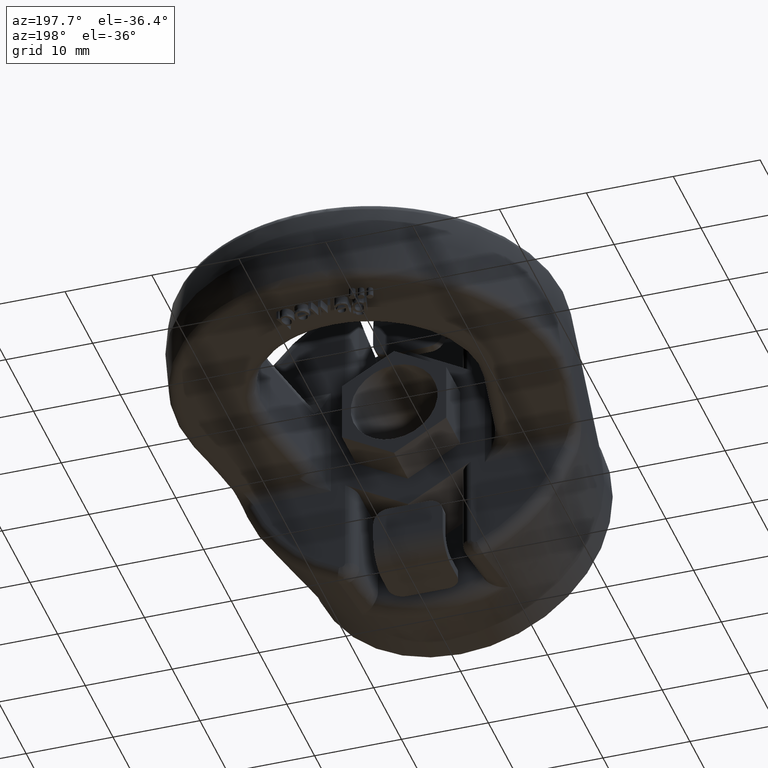
[diagram: clean part render]
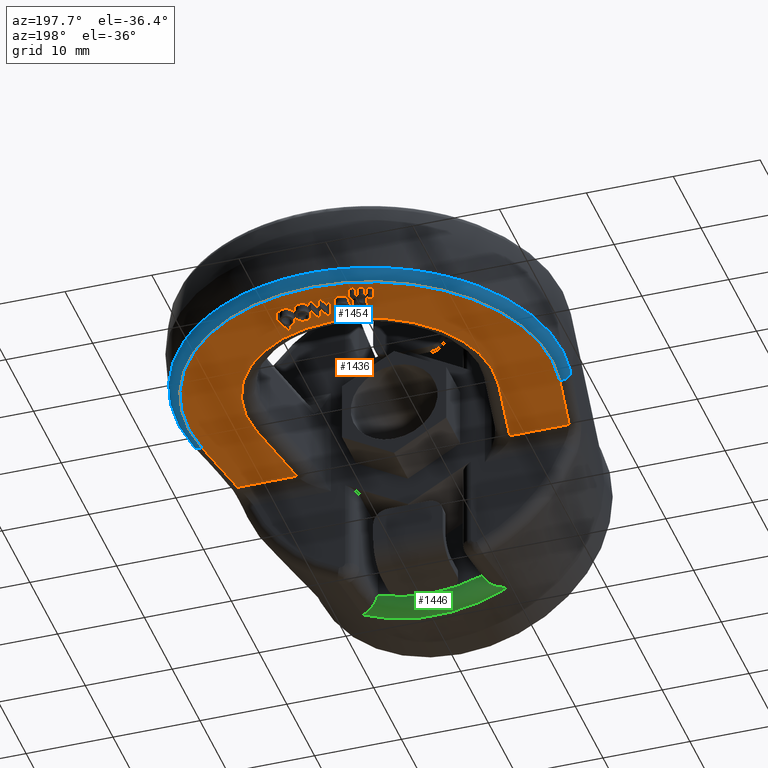
[diagram: same view with three faces highlighted in distinct colors, each labeled with its STEP entity id]
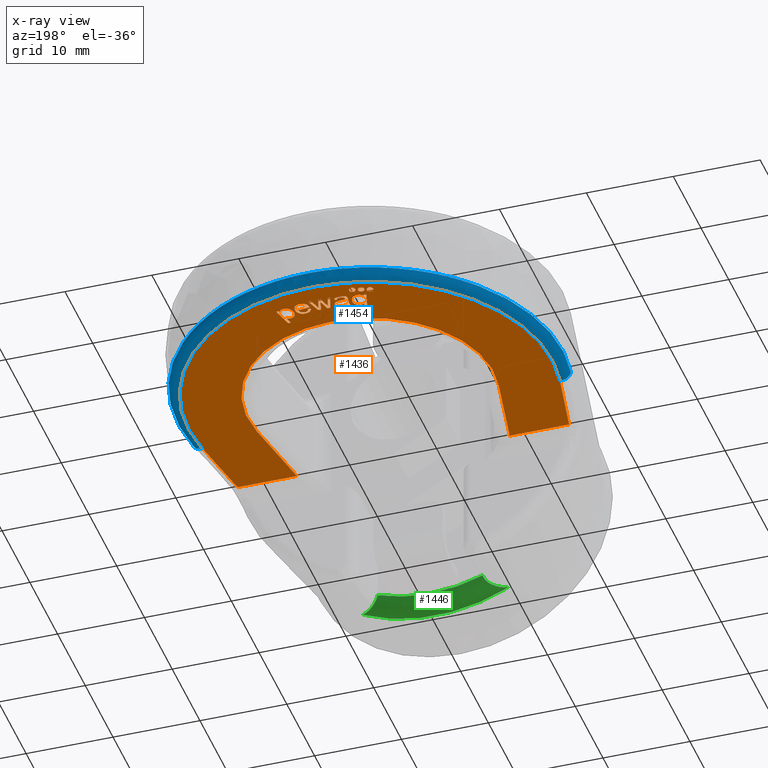
[diagram: x-ray of the same camera — body ghosted, the three highlighted faces saturated]
A machine part, auxiliary view with three faces highlighted in distinct colors.
The next image is the same camera in x-ray (body ghosted, the three faces saturated) — at least one of them is partly hidden behind the body in this view.
Their STEP definitions:

[orange] entity #1436 — the highlighted planar face has unit normal (-0, -0, 1).
#1436=ADVANCED_FACE('',(#1805,#1806,#1807,#1808,#1809,#1810,#1811,#1812,
#1813),#1615,.F.);
#1615=PLANE('',#5238);
#1721=CIRCLE('',#5233,0.375);
#1722=CIRCLE('',#5234,0.375);
#1723=CIRCLE('',#5235,0.375);
#1724=CIRCLE('',#5236,14.1666666666667);
#1725=CIRCLE('',#5237,20.9165006633519);
#1805=FACE_BOUND('',#1962,.T.);
#1806=FACE_BOUND('',#1963,.T.);
#1807=FACE_BOUND('',#1964,.T.);
#1808=FACE_BOUND('',#1965,.T.);
#1809=FACE_BOUND('',#1966,.T.);
#1810=FACE_BOUND('',#1967,.T.);
#1811=FACE_BOUND('',#1968,.T.);
#1812=FACE_BOUND('',#1969,.T.);
#1813=FACE_BOUND('',#1970,.T.);
#1962=EDGE_LOOP('',(#3263,#3264,#3265,#3266,#3267,#3268,#3269));
#1963=EDGE_LOOP('',(#3270,#3271,#3272,#3273,#3274,#3275,#3276,#3277,#3278,
#3279,#3280,#3281,#3282,#3283,#3284));
#1964=EDGE_LOOP('',(#3285,#3286,#3287,#3288,#3289));
#1965=EDGE_LOOP('',(#3290));
#1966=EDGE_LOOP('',(#3291));
#1967=EDGE_LOOP('',(#3292));
#1968=EDGE_LOOP('',(#3293,#3294,#3295,#3296,#3297,#3298,#3299,#3300));
#1969=EDGE_LOOP('',(#3301,#3302,#3303,#3304,#3305,#3306));
#1970=EDGE_LOOP('',(#3307,#3308,#3309,#3310,#3311,#3312,#3313,#3314,#3315));
#2234=LINE('',#8148,#2532);
#2235=LINE('',#8180,#2533);
#2236=LINE('',#8182,#2534);
#2237=LINE('',#8183,#2535);
#2238=LINE('',#8186,#2536);
#2239=LINE('',#8188,#2537);
#2240=LINE('',#8190,#2538);
#2241=LINE('',#8204,#2539);
#2242=LINE('',#8206,#2540);
#2243=LINE('',#8222,#2541);
#2244=LINE('',#8224,#2542);
#2245=LINE('',#8226,#2543);
#2246=LINE('',#8228,#2544);
#2247=LINE('',#8230,#2545);
#2248=LINE('',#8246,#2546);
#2249=LINE('',#8269,#2547);
#2250=LINE('',#8279,#2548);
#2251=LINE('',#8281,#2549);
#2252=LINE('',#8295,#2550);
#2253=LINE('',#8297,#2551);
#2254=LINE('',#8298,#2552);
#2255=LINE('',#8301,#2553);
#2256=LINE('',#8303,#2554);
#2257=LINE('',#8305,#2555);
#2258=LINE('',#8307,#2556);
#2259=LINE('',#8331,#2557);
#2260=LINE('',#8376,#2558);
#2532=VECTOR('',#5799,1.);
#2533=VECTOR('',#5800,1.);
#2534=VECTOR('',#5801,1.);
#2535=VECTOR('',#5802,1.);
#2536=VECTOR('',#5803,1.);
#2537=VECTOR('',#5804,1.);
#2538=VECTOR('',#5805,1.);
#2539=VECTOR('',#5806,1.);
#2540=VECTOR('',#5807,1.);
#2541=VECTOR('',#5808,1.);
#2542=VECTOR('',#5809,1.);
#2543=VECTOR('',#5810,1.);
#2544=VECTOR('',#5811,1.);
#2545=VECTOR('',#5812,1.);
#2546=VECTOR('',#5813,1.);
#2547=VECTOR('',#5814,1.);
#2548=VECTOR('',#5823,1.);
#2549=VECTOR('',#5824,1.);
#2550=VECTOR('',#5827,1.);
#2551=VECTOR('',#5828,1.);
#2552=VECTOR('',#5829,1.);
#2553=VECTOR('',#5830,1.);
#2554=VECTOR('',#5831,1.);
#2555=VECTOR('',#5832,1.);
#2556=VECTOR('',#5833,1.);
#2557=VECTOR('',#5834,1.);
#2558=VECTOR('',#5835,1.);
#3263=ORIENTED_EDGE('',*,*,#4554,.T.);
#3264=ORIENTED_EDGE('',*,*,#4555,.T.);
#3265=ORIENTED_EDGE('',*,*,#4556,.T.);
#3266=ORIENTED_EDGE('',*,*,#4557,.T.);
#3267=ORIENTED_EDGE('',*,*,#4558,.T.);
#3268=ORIENTED_EDGE('',*,*,#4559,.T.);
#3269=ORIENTED_EDGE('',*,*,#4560,.T.);
#3270=ORIENTED_EDGE('',*,*,#4561,.T.);
#3271=ORIENTED_EDGE('',*,*,#4562,.T.);
#3272=ORIENTED_EDGE('',*,*,#4563,.T.);
#3273=ORIENTED_EDGE('',*,*,#4564,.T.);
#3274=ORIENTED_EDGE('',*,*,#4565,.T.);
#3275=ORIENTED_EDGE('',*,*,#4566,.T.);
#3276=ORIENTED_EDGE('',*,*,#4567,.T.);
#3277=ORIENTED_EDGE('',*,*,#4568,.T.);
#3278=ORIENTED_EDGE('',*,*,#4569,.T.);
#3279=ORIENTED_EDGE('',*,*,#4570,.T.);
#3280=ORIENTED_EDGE('',*,*,#4571,.T.);
#3281=ORIENTED_EDGE('',*,*,#4572,.T.);
#3282=ORIENTED_EDGE('',*,*,#4573,.T.);
#3283=ORIENTED_EDGE('',*,*,#4574,.T.);
#3284=ORIENTED_EDGE('',*,*,#4575,.T.);
#3285=ORIENTED_EDGE('',*,*,#4576,.T.);
#3286=ORIENTED_EDGE('',*,*,#4577,.T.);
#3287=ORIENTED_EDGE('',*,*,#4578,.T.);
#3288=ORIENTED_EDGE('',*,*,#4579,.T.);
#3289=ORIENTED_EDGE('',*,*,#4580,.T.);
#3290=ORIENTED_EDGE('',*,*,#4581,.F.);
#3291=ORIENTED_EDGE('',*,*,#4582,.F.);
#3292=ORIENTED_EDGE('',*,*,#4583,.F.);
#3293=ORIENTED_EDGE('',*,*,#4584,.T.);
#3294=ORIENTED_EDGE('',*,*,#4585,.T.);
#3295=ORIENTED_EDGE('',*,*,#4586,.T.);
#3296=ORIENTED_EDGE('',*,*,#4587,.T.);
#3297=ORIENTED_EDGE('',*,*,#4588,.T.);
#3298=ORIENTED_EDGE('',*,*,#4589,.T.);
#3299=ORIENTED_EDGE('',*,*,#4590,.T.);
#3300=ORIENTED_EDGE('',*,*,#4591,.T.);
#3301=ORIENTED_EDGE('',*,*,#4592,.T.);
#3302=ORIENTED_EDGE('',*,*,#4593,.T.);
#3303=ORIENTED_EDGE('',*,*,#4594,.T.);
#3304=ORIENTED_EDGE('',*,*,#4595,.T.);
#3305=ORIENTED_EDGE('',*,*,#4596,.T.);
#3306=ORIENTED_EDGE('',*,*,#4597,.T.);
#3307=ORIENTED_EDGE('',*,*,#4598,.T.);
#3308=ORIENTED_EDGE('',*,*,#4599,.T.);
#3309=ORIENTED_EDGE('',*,*,#4600,.T.);
#3310=ORIENTED_EDGE('',*,*,#4601,.T.);
#3311=ORIENTED_EDGE('',*,*,#4602,.T.);
#3312=ORIENTED_EDGE('',*,*,#4603,.T.);
#3313=ORIENTED_EDGE('',*,*,#4604,.T.);
#3314=ORIENTED_EDGE('',*,*,#4605,.T.);
#3315=ORIENTED_EDGE('',*,*,#4606,.T.);
#4075=VERTEX_POINT('',#8141);
#4076=VERTEX_POINT('',#8142);
#4077=VERTEX_POINT('',#8147);
#4078=VERTEX_POINT('',#8149);
#4079=VERTEX_POINT('',#8162);
#4080=VERTEX_POINT('',#8179);
#4081=VERTEX_POINT('',#8181);
#4082=VERTEX_POINT('',#8184);
#4083=VERTEX_POINT('',#8185);
#4084=VERTEX_POINT('',#8187);
#4085=VERTEX_POINT('',#8189);
#4086=VERTEX_POINT('',#8191);
#4087=VERTEX_POINT('',#8198);
#4088=VERTEX_POINT('',#8203);
#4089=VERTEX_POINT('',#8205);
#4090=VERTEX_POINT('',#8207);
#4091=VERTEX_POINT('',#8214);
#4092=VERTEX_POINT('',#8221);
#4093=VERTEX_POINT('',#8223);
#4094=VERTEX_POINT('',#8225);
#4095=VERTEX_POINT('',#8227);
#4096=VERTEX_POINT('',#8229);
#4097=VERTEX_POINT('',#8239);
#4098=VERTEX_POINT('',#8240);
#4099=VERTEX_POINT('',#8245);
#4100=VERTEX_POINT('',#8247);
#4101=VERTEX_POINT('',#8268);
#4102=VERTEX_POINT('',#8271);
#4103=VERTEX_POINT('',#8273);
#4104=VERTEX_POINT('',#8275);
#4105=VERTEX_POINT('',#8277);
#4106=VERTEX_POINT('',#8278);
#4107=VERTEX_POINT('',#8280);
#4108=VERTEX_POINT('',#8282);
#4109=VERTEX_POINT('',#8287);
#4110=VERTEX_POINT('',#8289);
#4111=VERTEX_POINT('',#8294);
#4112=VERTEX_POINT('',#8296);
#4113=VERTEX_POINT('',#8299);
#4114=VERTEX_POINT('',#8300);
#4115=VERTEX_POINT('',#8302);
#4116=VERTEX_POINT('',#8304);
#4117=VERTEX_POINT('',#8306);
#4118=VERTEX_POINT('',#8308);
#4119=VERTEX_POINT('',#8332);
#4120=VERTEX_POINT('',#8333);
#4121=VERTEX_POINT('',#8338);
#4122=VERTEX_POINT('',#8355);
#4123=VERTEX_POINT('',#8362);
#4124=VERTEX_POINT('',#8375);
#4125=VERTEX_POINT('',#8377);
#4126=VERTEX_POINT('',#8382);
#4127=VERTEX_POINT('',#8395);
#4554=EDGE_CURVE('',#4075,#4076,#4979,.T.);
#4555=EDGE_CURVE('',#4076,#4077,#4980,.T.);
#4556=EDGE_CURVE('',#4077,#4078,#2234,.T.);
#4557=EDGE_CURVE('',#4078,#4079,#4981,.T.);
#4558=EDGE_CURVE('',#4079,#4080,#4982,.T.);
#4559=EDGE_CURVE('',#4080,#4081,#2235,.T.);
#4560=EDGE_CURVE('',#4081,#4075,#2236,.T.);
#4561=EDGE_CURVE('',#4082,#4083,#2237,.T.);
#4562=EDGE_CURVE('',#4083,#4084,#2238,.T.);
#4563=EDGE_CURVE('',#4084,#4085,#2239,.T.);
#4564=EDGE_CURVE('',#4085,#4086,#2240,.T.);
#4565=EDGE_CURVE('',#4086,#4087,#4983,.T.);
#4566=EDGE_CURVE('',#4087,#4088,#4984,.T.);
#4567=EDGE_CURVE('',#4088,#4089,#2241,.T.);
#4568=EDGE_CURVE('',#4089,#4090,#2242,.T.);
#4569=EDGE_CURVE('',#4090,#4091,#4985,.T.);
#4570=EDGE_CURVE('',#4091,#4092,#4986,.T.);
#4571=EDGE_CURVE('',#4092,#4093,#2243,.T.);
#4572=EDGE_CURVE('',#4093,#4094,#2244,.T.);
#4573=EDGE_CURVE('',#4094,#4095,#2245,.T.);
#4574=EDGE_CURVE('',#4095,#4096,#2246,.T.);
#4575=EDGE_CURVE('',#4096,#4082,#2247,.T.);
#4576=EDGE_CURVE('',#4097,#4098,#4987,.T.);
#4577=EDGE_CURVE('',#4098,#4099,#4988,.T.);
#4578=EDGE_CURVE('',#4099,#4100,#2248,.T.);
#4579=EDGE_CURVE('',#4100,#4101,#4989,.T.);
#4580=EDGE_CURVE('',#4101,#4097,#2249,.T.);
#4581=EDGE_CURVE('',#4102,#4102,#1721,.T.);
#4582=EDGE_CURVE('',#4103,#4103,#1722,.T.);
#4583=EDGE_CURVE('',#4104,#4104,#1723,.T.);
#4584=EDGE_CURVE('',#4105,#4106,#1724,.T.);
#4585=EDGE_CURVE('',#4106,#4107,#2250,.T.);
#4586=EDGE_CURVE('',#4107,#4108,#2251,.T.);
#4587=EDGE_CURVE('',#4108,#4109,#4990,.T.);
#4588=EDGE_CURVE('',#4109,#4110,#1725,.T.);
#4589=EDGE_CURVE('',#4110,#4111,#4991,.T.);
#4590=EDGE_CURVE('',#4111,#4112,#2252,.T.);
#4591=EDGE_CURVE('',#4112,#4105,#2253,.T.);
#4592=EDGE_CURVE('',#4113,#4114,#2254,.T.);
#4593=EDGE_CURVE('',#4114,#4115,#2255,.T.);
#4594=EDGE_CURVE('',#4115,#4116,#2256,.T.);
#4595=EDGE_CURVE('',#4116,#4117,#2257,.T.);
#4596=EDGE_CURVE('',#4117,#4118,#2258,.T.);
#4597=EDGE_CURVE('',#4118,#4113,#4992,.T.);
#4598=EDGE_CURVE('',#4119,#4120,#2259,.T.);
#4599=EDGE_CURVE('',#4120,#4121,#4993,.T.);
#4600=EDGE_CURVE('',#4121,#4122,#4994,.T.);
#4601=EDGE_CURVE('',#4122,#4123,#4995,.T.);
#4602=EDGE_CURVE('',#4123,#4124,#4996,.T.);
#4603=EDGE_CURVE('',#4124,#4125,#2260,.T.);
#4604=EDGE_CURVE('',#4125,#4126,#4997,.T.);
#4605=EDGE_CURVE('',#4126,#4127,#4998,.T.);
#4606=EDGE_CURVE('',#4127,#4119,#4999,.T.);
#4979=B_SPLINE_CURVE_WITH_KNOTS('',3,(#8129,#8130,#8131,#8132,#8133,#8134,
#8135,#8136,#8137,#8138,#8139,#8140),.UNSPECIFIED.,.F.,.F.,(4,2,2,2,2,4),
(0.,0.305645754892086,0.470829306249208,0.636012857606331,0.802206343843953,
1.),.UNSPECIFIED.);
#4980=B_SPLINE_CURVE_WITH_KNOTS('',3,(#8143,#8144,#8145,#8146),
 .UNSPECIFIED.,.F.,.F.,(4,4),(0.,1.),.UNSPECIFIED.);
#4981=B_SPLINE_CURVE_WITH_KNOTS('',3,(#8150,#8151,#8152,#8153,#8154,#8155,
#8156,#8157,#8158,#8159,#8160,#8161),.UNSPECIFIED.,.F.,.F.,(4,2,2,2,2,4),
(0.,0.163304651309286,0.382303784248527,0.619375661168188,0.856447538087857,
1.),.UNSPECIFIED.);
#4982=B_SPLINE_CURVE_WITH_KNOTS('',3,(#8163,#8164,#8165,#8166,#8167,#8168,
#8169,#8170,#8171,#8172,#8173,#8174,#8175,#8176,#8177,#8178),
 .UNSPECIFIED.,.F.,.F.,(4,2,2,2,2,2,2,4),(0.,0.139503666745457,0.312880428291725,
0.486257189837989,0.605370995480464,0.72385410568908,0.842337215897698,
1.),.UNSPECIFIED.);
#4983=B_SPLINE_CURVE_WITH_KNOTS('',3,(#8192,#8193,#8194,#8195,#8196,#8197),
 .UNSPECIFIED.,.F.,.F.,(4,2,4),(0.,0.728909607654965,1.),.UNSPECIFIED.);
#4984=B_SPLINE_CURVE_WITH_KNOTS('',3,(#8199,#8200,#8201,#8202),
 .UNSPECIFIED.,.F.,.F.,(4,4),(0.,1.),.UNSPECIFIED.);
#4985=B_SPLINE_CURVE_WITH_KNOTS('',3,(#8208,#8209,#8210,#8211,#8212,#8213),
 .UNSPECIFIED.,.F.,.F.,(4,2,4),(0.,0.752082276025117,1.),.UNSPECIFIED.);
#4986=B_SPLINE_CURVE_WITH_KNOTS('',3,(#8215,#8216,#8217,#8218,#8219,#8220),
 .UNSPECIFIED.,.F.,.F.,(4,2,4),(0.,0.250451922487237,1.),.UNSPECIFIED.);
#4987=B_SPLINE_CURVE_WITH_KNOTS('',3,(#8231,#8232,#8233,#8234,#8235,#8236,
#8237,#8238),.UNSPECIFIED.,.F.,.F.,(4,2,2,4),(0.,0.363477968613221,0.728087675912445,
1.),.UNSPECIFIED.);
#4988=B_SPLINE_CURVE_WITH_KNOTS('',3,(#8241,#8242,#8243,#8244),
 .UNSPECIFIED.,.F.,.F.,(4,4),(0.,1.),.UNSPECIFIED.);
#4989=B_SPLINE_CURVE_WITH_KNOTS('',3,(#8248,#8249,#8250,#8251,#8252,#8253,
#8254,#8255,#8256,#8257,#8258,#8259,#8260,#8261,#8262,#8263,#8264,#8265,
#8266,#8267),.UNSPECIFIED.,.F.,.F.,(4,2,2,2,2,2,2,2,2,4),(0.,0.102921203122043,
0.206156274885329,0.336063021724235,0.465707475917734,0.599570296299741,
0.733433116681748,0.86284525505617,0.992257393430591,1.),.UNSPECIFIED.);
#4990=B_SPLINE_CURVE_WITH_KNOTS('',3,(#8283,#8284,#8285,#8286),
 .UNSPECIFIED.,.F.,.F.,(4,4),(0.,1.),.UNSPECIFIED.);
#4991=B_SPLINE_CURVE_WITH_KNOTS('',3,(#8290,#8291,#8292,#8293),
 .UNSPECIFIED.,.F.,.F.,(4,4),(0.,1.),.UNSPECIFIED.);
#4992=B_SPLINE_CURVE_WITH_KNOTS('',3,(#8309,#8310,#8311,#8312,#8313,#8314,
#8315,#8316,#8317,#8318,#8319,#8320,#8321,#8322,#8323,#8324,#8325,#8326,
#8327,#8328,#8329,#8330),.UNSPECIFIED.,.F.,.F.,(4,2,2,2,2,2,2,2,2,2,4),
(0.,0.0830854503763879,0.165678296755074,0.273272220956498,0.380460889370522,
0.487248686046684,0.601946689884046,0.7170552508492,0.831909514623426,0.915821305508706,
1.),.UNSPECIFIED.);
#4993=B_SPLINE_CURVE_WITH_KNOTS('',3,(#8334,#8335,#8336,#8337),
 .UNSPECIFIED.,.F.,.F.,(4,4),(0.,1.),.UNSPECIFIED.);
#4994=B_SPLINE_CURVE_WITH_KNOTS('',3,(#8339,#8340,#8341,#8342,#8343,#8344,
#8345,#8346,#8347,#8348,#8349,#8350,#8351,#8352,#8353,#8354),
 .UNSPECIFIED.,.F.,.F.,(4,2,2,2,2,2,2,4),(0.,0.121639465164567,0.243930904991197,
0.445161792748243,0.646392680505289,0.763565096161288,0.881519242448379,
1.),.UNSPECIFIED.);
#4995=B_SPLINE_CURVE_WITH_KNOTS('',3,(#8356,#8357,#8358,#8359,#8360,#8361),
 .UNSPECIFIED.,.F.,.F.,(4,2,4),(0.,0.329344693449401,1.),.UNSPECIFIED.);
#4996=B_SPLINE_CURVE_WITH_KNOTS('',3,(#8363,#8364,#8365,#8366,#8367,#8368,
#8369,#8370,#8371,#8372,#8373,#8374),.UNSPECIFIED.,.F.,.F.,(4,2,2,2,2,4),
(0.,0.0173977322142876,0.21798335068494,0.490675035316417,0.745337517658207,
1.),.UNSPECIFIED.);
#4997=B_SPLINE_CURVE_WITH_KNOTS('',3,(#8378,#8379,#8380,#8381),
 .UNSPECIFIED.,.F.,.F.,(4,4),(0.,1.),.UNSPECIFIED.);
#4998=B_SPLINE_CURVE_WITH_KNOTS('',3,(#8383,#8384,#8385,#8386,#8387,#8388,
#8389,#8390,#8391,#8392,#8393,#8394),.UNSPECIFIED.,.F.,.F.,(4,2,2,2,2,4),
(0.,0.20173029270749,0.402155128097317,0.60175516992587,0.800199545078052,
1.),.UNSPECIFIED.);
#4999=B_SPLINE_CURVE_WITH_KNOTS('',3,(#8396,#8397,#8398,#8399,#8400,#8401,
#8402,#8403,#8404,#8405),.UNSPECIFIED.,.F.,.F.,(4,2,2,2,4),(0.,0.161403604805123,
0.323059797411184,0.661780038481073,1.),.UNSPECIFIED.);
#5233=AXIS2_PLACEMENT_3D('',#8270,#5815,#5816);
#5234=AXIS2_PLACEMENT_3D('',#8272,#5817,#5818);
#5235=AXIS2_PLACEMENT_3D('',#8274,#5819,#5820);
#5236=AXIS2_PLACEMENT_3D('',#8276,#5821,#5822);
#5237=AXIS2_PLACEMENT_3D('',#8288,#5825,#5826);
#5238=AXIS2_PLACEMENT_3D('',#8406,#5836,#5837);
#5799=DIRECTION('',(-0.926036898244065,-0.377432991523675,-2.21943910077081E-15));
#5800=DIRECTION('',(-0.24044171176867,0.970663578816962,-4.35215745783517E-16));
#5801=DIRECTION('',(-0.970663578816962,-0.240441711768669,-2.30591397380766E-15));
#5802=DIRECTION('',(0.258675883018078,-0.965964175083537,4.78557054739625E-16));
#5803=DIRECTION('',(0.999999995678886,9.29635860585154E-5,2.34292298928896E-15));
#5804=DIRECTION('',(0.297319028478968,0.954778191678215,8.22612952723347E-16));
#5805=DIRECTION('',(-0.999999995678886,-9.29635860306668E-5,-2.34292298928895E-15));
#5806=DIRECTION('',(-0.266687759387678,0.963782983348835,-4.97616060972298E-16));
#5807=DIRECTION('',(-0.999999995678886,-9.29635860439667E-5,-2.34292298928895E-15));
#5808=DIRECTION('',(-0.999999995678886,-9.2963586044615E-5,-2.34292298928895E-15));
#5809=DIRECTION('',(0.303109223404764,-0.952955822001713,5.84377374972103E-16));
#5810=DIRECTION('',(0.999999995678886,9.29635860388955E-5,2.34292298928895E-15));
#5811=DIRECTION('',(0.260553429481473,0.965459429694196,7.37884251154587E-16));
#5812=DIRECTION('',(0.226101851815542,0.974103666251998,6.58308231515512E-16));
#5813=DIRECTION('',(-0.99995564898741,0.00941807083053466,-2.34156372913683E-15));
#5814=DIRECTION('',(0.991600377783165,-0.129339440157614,2.30615967347319E-15));
#5815=DIRECTION('',(2.34291072916505E-15,1.31989829693887E-16,-1.));
#5816=DIRECTION('',(0.,1.,0.));
#5817=DIRECTION('',(2.34291072916505E-15,1.31989829693887E-16,-1.));
#5818=DIRECTION('',(0.,1.,0.));
#5819=DIRECTION('',(2.34291072916505E-15,1.31989829693887E-16,-1.));
#5820=DIRECTION('',(0.,1.,0.));
#5821=DIRECTION('',(-2.34291072916505E-15,-1.31989829693887E-16,1.));
#5822=DIRECTION('',(-3.26275190578543E-31,1.,1.2245106889248E-16));
#5823=DIRECTION('',(0.179081367352328,-0.983834266463219,2.89715539685826E-16));
#5824=DIRECTION('',(-1.,0.,-2.34291072916505E-15));
#5825=DIRECTION('',(2.34291072916505E-15,1.31989829693887E-16,-1.));
#5826=DIRECTION('',(-2.94646600845494E-31,1.,1.24403467666289E-16));
#5827=DIRECTION('',(-1.,0.,-2.34291072916505E-15));
#5828=DIRECTION('',(0.179081367352328,0.983834266463219,5.49427774240808E-16));
#5829=DIRECTION('',(-0.240261234879316,-0.97070826668689,-6.91034243803645E-16));
#5830=DIRECTION('',(0.970708266686894,-0.240261234879299,2.24257077343617E-15));
#5831=DIRECTION('',(0.24026123487932,0.970708266686889,6.91034243803655E-16));
#5832=DIRECTION('',(-0.970708266686878,0.240261234879365,-2.24257077343612E-15));
#5833=DIRECTION('',(-0.240261234879309,-0.970708266686892,-6.91034243803629E-16));
#5834=DIRECTION('',(0.991576312927652,0.129523803375304,2.34027060709293E-15));
#5835=DIRECTION('',(0.965560779386234,0.260177595713098,2.29656350623331E-15));
#5836=DIRECTION('',(-2.34291072916505E-15,-1.31989829693887E-16,1.));
#5837=DIRECTION('',(0.,1.,1.31838984174237E-16));
#8129=CARTESIAN_POINT('',(-5.17146461947346,50.2553131167821,-5.00000000000001));
#8130=CARTESIAN_POINT('',(-5.04598467779833,49.7487503895407,-5.00000000000001));
#8131=CARTESIAN_POINT('',(-4.9205047361232,49.2421876622993,-5.00000000000001));
#8132=CARTESIAN_POINT('',(-4.72721026714569,48.4618575787915,-5.00000000000001));
#8133=CARTESIAN_POINT('',(-4.6508081867054,48.275212812134,-5.00000000000001));
#8134=CARTESIAN_POINT('',(-4.48052137067233,48.0749268827251,-5.00000000000001));
#8135=CARTESIAN_POINT('',(-4.36837535363507,48.0065100948054,-5.00000000000001));
#8136=CARTESIAN_POINT('',(-4.08984432270127,47.935395287186,-5.00000000000001));
#8137=CARTESIAN_POINT('',(-3.93016062806057,47.9397978599713,-5.00000000000001));
#8138=CARTESIAN_POINT('',(-3.53727148507616,48.0371198777497,-5.00000000000001));
#8139=CARTESIAN_POINT('',(-3.37651664458398,48.1270150303619,-5.00000000000001));
#8140=CARTESIAN_POINT('',(-3.26850620850113,48.2539197375009,-5.00000000000001));
#8141=CARTESIAN_POINT('',(-5.17146461947346,50.2553131167821,-5.00000000000001));
#8142=CARTESIAN_POINT('',(-3.26850620850113,48.2539197375009,-5.00000000000001));
#8143=CARTESIAN_POINT('',(-3.26850620850113,48.2539197375009,-5.00000000000001));
#8144=CARTESIAN_POINT('',(-3.16049577241827,48.3808244446398,-5.00000000000001));
#8145=CARTESIAN_POINT('',(-3.13254466172379,48.538631444501,-5.00000000000001));
#8146=CARTESIAN_POINT('',(-3.18386744740864,48.7268764156949,-5.00000000000001));
#8147=CARTESIAN_POINT('',(-3.18386744740864,48.7268764156949,-5.00000000000001));
#8148=CARTESIAN_POINT('',(-15.775664872289,43.5947269519485,-5.00000000000004));
#8149=CARTESIAN_POINT('',(-3.46823969568772,48.6109723209684,-5.00000000000001));
#8150=CARTESIAN_POINT('',(-3.46823969568772,48.6109723209684,-5.00000000000001));
#8151=CARTESIAN_POINT('',(-3.45809761341216,48.5186060394501,-5.00000000000001));
#8152=CARTESIAN_POINT('',(-3.47606064420637,48.4449741571848,-5.00000000000001));
#8153=CARTESIAN_POINT('',(-3.58390831168738,48.3164565960924,-5.00000000000001));
#8154=CARTESIAN_POINT('',(-3.6798033767143,48.2633884287734,-5.00000000000001));
#8155=CARTESIAN_POINT('',(-3.95078318755081,48.1962644004343,-5.00000000000001));
#8156=CARTESIAN_POINT('',(-4.0655621944294,48.1968233257196,-5.00000000000001));
#8157=CARTESIAN_POINT('',(-4.24579445056458,48.2694586919767,-5.00000000000001));
#8158=CARTESIAN_POINT('',(-4.31681193015408,48.3342269151133,-5.00000000000001));
#8159=CARTESIAN_POINT('',(-4.3989077806629,48.483146299924,-5.00000000000001));
#8160=CARTESIAN_POINT('',(-4.4379102061861,48.6092907647548,-5.00000000000001));
#8161=CARTESIAN_POINT('',(-4.48477829624114,48.8039102335949,-5.00000000000001));
#8162=CARTESIAN_POINT('',(-4.48477829624114,48.8039102335949,-5.00000000000001));
#8163=CARTESIAN_POINT('',(-4.48477829624114,48.8039102335949,-5.00000000000001));
#8164=CARTESIAN_POINT('',(-4.3139947756859,48.6828128108937,-5.00000000000001));
#8165=CARTESIAN_POINT('',(-4.13021867681516,48.6472936247769,-5.00000000000001));
#8166=CARTESIAN_POINT('',(-3.68679716817358,48.7571329438774,-5.00000000000001));
#8167=CARTESIAN_POINT('',(-3.51756590918364,48.8912960281985,-5.00000000000001));
#8168=CARTESIAN_POINT('',(-3.33490229639925,49.3068333203724,-5.00000000000001));
#8169=CARTESIAN_POINT('',(-3.31913724304912,49.53278065094,-5.00000000000001));
#8170=CARTESIAN_POINT('',(-3.42108969566016,49.9443628668237,-5.00000000000001));
#8171=CARTESIAN_POINT('',(-3.49033060476869,50.0912721460913,-5.00000000000001));
#8172=CARTESIAN_POINT('',(-3.68404937146538,50.3442539699589,-5.00000000000001));
#8173=CARTESIAN_POINT('',(-3.80069118899902,50.432122388134,-5.00000000000001));
#8174=CARTESIAN_POINT('',(-4.07380275001,50.5278722756582,-5.00000000000001));
#8175=CARTESIAN_POINT('',(-4.22119123604038,50.5328722518796,-5.00000000000001));
#8176=CARTESIAN_POINT('',(-4.59070915990836,50.4413394859625,-5.00000000000001));
#8177=CARTESIAN_POINT('',(-4.74365461768065,50.3145049291172,-5.00000000000001));
#8178=CARTESIAN_POINT('',(-4.83905078673898,50.1123182945235,-5.00000000000001));
#8179=CARTESIAN_POINT('',(-4.83905078673898,50.1123182945235,-5.00000000000001));
#8180=CARTESIAN_POINT('',(-9.45030028744299,68.7279399778263,-5.00000000000002));
#8181=CARTESIAN_POINT('',(-4.89164164464694,50.3246276728526,-5.00000000000001));
#8182=CARTESIAN_POINT('',(-19.941341357204,46.5966876950264,-5.00000000000005));
#8183=CARTESIAN_POINT('',(-5.24007688244434,70.1576215224163,-5.00000000000001));
#8184=CARTESIAN_POINT('',(0.00808229076548875,50.5596068667461,-5.));
#8185=CARTESIAN_POINT('',(0.38108872589426,49.1667021660599,-5.));
#8186=CARTESIAN_POINT('',(-24.4985278648325,49.1643892676719,-5.00000000000006));
#8187=CARTESIAN_POINT('',(0.707112021160167,49.1667324743547,-5.));
#8188=CARTESIAN_POINT('',(2.97348711141745,56.4447244730858,-4.99999999999999));
#8189=CARTESIAN_POINT('',(1.27113964704365,50.9779898279542,-5.));
#8190=CARTESIAN_POINT('',(-24.4986962409366,50.9755941715883,-5.00000000000006));
#8191=CARTESIAN_POINT('',(0.948370077279399,50.9779598221374,-5.));
#8192=CARTESIAN_POINT('',(0.948370077279399,50.9779598221374,-5.));
#8193=CARTESIAN_POINT('',(0.850573800083456,50.6293961115894,-5.));
#8194=CARTESIAN_POINT('',(0.752777522887513,50.2808324010413,-5.));
#8195=CARTESIAN_POINT('',(0.618609614865871,49.8026335861438,-5.));
#8196=CARTESIAN_POINT('',(0.582121893482495,49.6730310812808,-5.));
#8197=CARTESIAN_POINT('',(0.545692217377958,49.5434122766746,-5.));
#8198=CARTESIAN_POINT('',(0.545692217377958,49.5434122766746,-5.));
#8199=CARTESIAN_POINT('',(0.545692217377958,49.5434122766746,-5.));
#8200=CARTESIAN_POINT('',(0.541135218030474,49.5625983458316,-5.));
#8201=CARTESIAN_POINT('',(0.509237114420671,49.6873075836178,-5.));
#8202=CARTESIAN_POINT('',(0.45064871110372,49.9169005007744,-5.));
#8203=CARTESIAN_POINT('',(0.45064871110372,49.9169005007744,-5.));
#8204=CARTESIAN_POINT('',(-5.20069619089196,70.3402977428688,-5.00000000000001));
#8205=CARTESIAN_POINT('',(0.157064035276714,50.9778862594898,-5.));
#8206=CARTESIAN_POINT('',(-24.4986962409364,50.975594171588,-5.00000000000006));
#8207=CARTESIAN_POINT('',(-0.163753299186545,50.9778564351598,-5.));
#8208=CARTESIAN_POINT('',(-0.163753299186545,50.9778564351598,-5.));
#8209=CARTESIAN_POINT('',(-0.25569271193327,50.6275878030609,-5.));
#8210=CARTESIAN_POINT('',(-0.347632124679996,50.277319170962,-5.));
#8211=CARTESIAN_POINT('',(-0.469878607116254,49.811587371045,-5.));
#8212=CARTESIAN_POINT('',(-0.501153963546192,49.696380533929,-5.));
#8213=CARTESIAN_POINT('',(-0.531945176605927,49.5810455314619,-5.));
#8214=CARTESIAN_POINT('',(-0.531945176605927,49.5810455314619,-5.));
#8215=CARTESIAN_POINT('',(-0.531945176605927,49.5810455314619,-5.));
#8216=CARTESIAN_POINT('',(-0.56709625262276,49.6976535032167,-5.));
#8217=CARTESIAN_POINT('',(-0.602247328639593,49.8142614749716,-5.));
#8218=CARTESIAN_POINT('',(-0.742597922349346,50.2798517191862,-5.));
#8219=CARTESIAN_POINT('',(-0.847870872144299,50.6288118515748,-5.));
#8220=CARTESIAN_POINT('',(-0.953107105888236,50.977783053999,-5.));
#8221=CARTESIAN_POINT('',(-0.953107105888236,50.977783053999,-5.));
#8222=CARTESIAN_POINT('',(-24.4986962409364,50.975594171588,-5.00000000000006));
#8223=CARTESIAN_POINT('',(-1.25700506774289,50.9777548025545,-5.));
#8224=CARTESIAN_POINT('',(-7.44278121289535,70.4254354930581,-5.00000000000002));
#8225=CARTESIAN_POINT('',(-0.680927277846185,49.1666034372434,-5.));
#8226=CARTESIAN_POINT('',(-24.4985278648328,49.1643892676724,-5.00000000000006));
#8227=CARTESIAN_POINT('',(-0.356205472780939,49.166633624547,-5.));
#8228=CARTESIAN_POINT('',(1.98766137193018,57.8516405794635,-5.));
#8229=CARTESIAN_POINT('',(-0.063471013038612,50.2513372307022,-5.));
#8230=CARTESIAN_POINT('',(1.93562705466039,58.8639546918434,-5.));
#8231=CARTESIAN_POINT('',(2.79335506430457,49.7774374698736,-4.99999999999999));
#8232=CARTESIAN_POINT('',(2.75601442934387,49.5817231862315,-4.99999999999999));
#8233=CARTESIAN_POINT('',(2.67954274562389,49.4381955710878,-4.99999999999999));
#8234=CARTESIAN_POINT('',(2.44797733564573,49.255229275187,-4.99999999999999));
#8235=CARTESIAN_POINT('',(2.31370634319804,49.2195419894557,-4.99999999999999));
#8236=CARTESIAN_POINT('',(2.04785135806974,49.2542187964739,-4.99999999999999));
#8237=CARTESIAN_POINT('',(1.95486456889805,49.2960160254815,-5.));
#8238=CARTESIAN_POINT('',(1.8818148313252,49.3648812572146,-5.));
#8239=CARTESIAN_POINT('',(2.79335506430457,49.7774374698736,-4.99999999999999));
#8240=CARTESIAN_POINT('',(1.8818148313252,49.3648812572146,-5.));
#8241=CARTESIAN_POINT('',(1.8818148313252,49.3648812572146,-5.));
#8242=CARTESIAN_POINT('',(1.80949309184998,49.434296499721,-5.));
#8243=CARTESIAN_POINT('',(1.75777015603375,49.5358531671979,-5.));
#8244=CARTESIAN_POINT('',(1.72745674098167,49.6707354481993,-5.));
#8245=CARTESIAN_POINT('',(1.72745674098167,49.6707354481993,-5.));
#8246=CARTESIAN_POINT('',(-24.6420393193415,49.9190962449138,-5.00000000000006));
#8247=CARTESIAN_POINT('',(1.40235245282482,49.6737974392149,-5.));
#8248=CARTESIAN_POINT('',(1.40235245282482,49.6737974392149,-5.));
#8249=CARTESIAN_POINT('',(1.42934098876341,49.4832366892553,-5.));
#8250=CARTESIAN_POINT('',(1.5042946801385,49.3283424725527,-5.));
#8251=CARTESIAN_POINT('',(1.75050722724439,49.0895235087558,-5.));
#8252=CARTESIAN_POINT('',(1.91838548658191,49.0163436242265,-5.));
#8253=CARTESIAN_POINT('',(2.39782785053902,48.9538075377834,-4.99999999999999));
#8254=CARTESIAN_POINT('',(2.61998470605247,49.0067413375197,-4.99999999999999));
#8255=CARTESIAN_POINT('',(2.9755831213652,49.2902486938071,-4.99999999999999));
#8256=CARTESIAN_POINT('',(3.08346921228063,49.5061182776543,-4.99999999999999));
#8257=CARTESIAN_POINT('',(3.16097692232648,50.1003428580986,-4.99999999999999));
#8258=CARTESIAN_POINT('',(3.1122136270243,50.3453411788305,-4.99999999999999));
#8259=CARTESIAN_POINT('',(2.83953707082215,50.7201605250282,-4.99999999999999));
#8260=CARTESIAN_POINT('',(2.64461195006734,50.8307212674074,-4.99999999999999));
#8261=CARTESIAN_POINT('',(2.14839232976718,50.895445696041,-4.99999999999999));
#8262=CARTESIAN_POINT('',(1.93768505986081,50.8397285346116,-5.));
#8263=CARTESIAN_POINT('',(1.58526808872443,50.5528929633262,-5.));
#8264=CARTESIAN_POINT('',(1.47789031718827,50.3334206476195,-5.));
#8265=CARTESIAN_POINT('',(1.43686168945856,50.0188684684302,-5.));
#8266=CARTESIAN_POINT('',(1.43395005122533,49.991514656856,-5.));
#8267=CARTESIAN_POINT('',(1.43052562597695,49.9551981893458,-5.));
#8268=CARTESIAN_POINT('',(1.43052562597695,49.9551981893458,-5.));
#8269=CARTESIAN_POINT('',(-25.9957577891829,53.532546707961,-5.00000000000006));
#8270=CARTESIAN_POINT('',(-3.98915464365271,51.5876044916334,-5.00000000000001));
#8271=CARTESIAN_POINT('',(-3.98915464365271,51.9626044916334,-5.00000000000001));
#8272=CARTESIAN_POINT('',(-4.93825013449447,51.3643495941197,-5.00000000000001));
#8273=CARTESIAN_POINT('',(-4.93825013449447,51.7393495941197,-5.00000000000001));
#8274=CARTESIAN_POINT('',(-5.87499999999999,51.0939338226207,-5.00000000000002));
#8275=CARTESIAN_POINT('',(-5.87499999999999,51.4689338226207,-5.00000000000002));
#8276=CARTESIAN_POINT('',(1.16825732462632E-14,32.5,-5.));
#8277=CARTESIAN_POINT('',(13.937652108229,29.9630139625087,-4.99999999999997));
#8278=CARTESIAN_POINT('',(-13.9376521082289,29.9630139625087,-5.00000000000004));
#8279=CARTESIAN_POINT('',(-12.1911660682718,20.3681977210795,-5.00000000000003));
#8280=CARTESIAN_POINT('',(-12.2454945549997,20.6666666666667,-5.00000000000003));
#8281=CARTESIAN_POINT('',(-24.5,20.6666666666667,-5.00000000000006));
#8282=CARTESIAN_POINT('',(-19.0801978931823,20.6666666666667,-5.00000000000005));
#8283=CARTESIAN_POINT('',(-19.0801978931823,20.6666666666667,-5.00000000000005));
#8284=CARTESIAN_POINT('',(-19.5765811849757,23.3424983128636,-5.00000000000005));
#8285=CARTESIAN_POINT('',(-20.0722717084869,26.0184585296523,-5.00000000000005));
#8286=CARTESIAN_POINT('',(-20.5674093933228,28.694520943763,-5.00000000000005));
#8287=CARTESIAN_POINT('',(-20.5674093933228,28.694520943763,-5.00000000000005));
#8288=CARTESIAN_POINT('',(1.17145536458253E-14,32.5,-5.));
#8289=CARTESIAN_POINT('',(20.5674093933228,28.6945209437632,-4.99999999999996));
#8290=CARTESIAN_POINT('',(20.5674093933228,28.6945209437632,-4.99999999999996));
#8291=CARTESIAN_POINT('',(20.072271708487,26.0184585296524,-4.99999999999996));
#8292=CARTESIAN_POINT('',(19.5765811849758,23.3424983128636,-4.99999999999996));
#8293=CARTESIAN_POINT('',(19.0801978931824,20.6666666666667,-4.99999999999996));
#8294=CARTESIAN_POINT('',(19.0801978931824,20.6666666666667,-4.99999999999996));
#8295=CARTESIAN_POINT('',(-24.5,20.6666666666667,-5.00000000000006));
#8296=CARTESIAN_POINT('',(12.2454945549997,20.6666666666667,-4.99999999999998));
#8297=CARTESIAN_POINT('',(13.937652108229,29.9630139625087,-4.99999999999997));
#8298=CARTESIAN_POINT('',(6.59408948614624,57.3038624540743,-4.99999999999999));
#8299=CARTESIAN_POINT('',(4.47797336315738,48.7542875928342,-4.99999999999999));
#8300=CARTESIAN_POINT('',(4.26623124134637,47.8988028195581,-4.99999999999999));
#8301=CARTESIAN_POINT('',(-26.8278582447998,55.5949403654832,-5.00000000000006));
#8302=CARTESIAN_POINT('',(4.56943939388733,47.8237553849631,-4.99999999999999));
#8303=CARTESIAN_POINT('',(6.89729763868722,57.2288150194792,-4.99999999999998));
#8304=CARTESIAN_POINT('',(5.17132175320065,50.2554925815688,-4.99999999999999));
#8305=CARTESIAN_POINT('',(-26.2259758854865,58.0266775620911,-5.00000000000006));
#8306=CARTESIAN_POINT('',(4.89527599765814,50.3238170168146,-4.99999999999999));
#8307=CARTESIAN_POINT('',(6.62125188314471,57.2971394547254,-4.99999999999999));
#8308=CARTESIAN_POINT('',(4.83872948036753,50.0953566419484,-4.99999999999999));
#8309=CARTESIAN_POINT('',(4.83872948036753,50.0953566419484,-4.99999999999999));
#8310=CARTESIAN_POINT('',(4.79579296237169,50.200858108613,-4.99999999999999));
#8311=CARTESIAN_POINT('',(4.7384811487425,50.2861990742889,-4.99999999999999));
#8312=CARTESIAN_POINT('',(4.59679157689602,50.4158617855785,-4.99999999999999));
#8313=CARTESIAN_POINT('',(4.50272768881033,50.4631434555821,-4.99999999999999));
#8314=CARTESIAN_POINT('',(4.23363045343022,50.5297480537852,-4.99999999999999));
#8315=CARTESIAN_POINT('',(4.08876963418331,50.5240952788376,-4.99999999999999));
#8316=CARTESIAN_POINT('',(3.81745117640939,50.4281629234154,-4.99999999999999));
#8317=CARTESIAN_POINT('',(3.70209123366396,50.3404507451878,-4.99999999999999));
#8318=CARTESIAN_POINT('',(3.51392603065204,50.0884658307994,-4.99999999999999));
#8319=CARTESIAN_POINT('',(3.44514526390558,49.9415360694902,-4.99999999999999));
#8320=CARTESIAN_POINT('',(3.35909621585466,49.5938789773026,-4.99999999999999));
#8321=CARTESIAN_POINT('',(3.35183876296096,49.4237158009459,-4.99999999999999));
#8322=CARTESIAN_POINT('',(3.41234659702628,49.103806616423,-4.99999999999999));
#8323=CARTESIAN_POINT('',(3.48074944915126,48.969487017692,-4.99999999999999));
#8324=CARTESIAN_POINT('',(3.69255452142338,48.7538489142572,-4.99999999999999));
#8325=CARTESIAN_POINT('',(3.8148057389896,48.6832201122207,-4.99999999999999));
#8326=CARTESIAN_POINT('',(4.05421384276674,48.6239639086551,-4.99999999999999));
#8327=CARTESIAN_POINT('',(4.15040069501784,48.6225574303023,-4.99999999999999));
#8328=CARTESIAN_POINT('',(4.33172656983859,48.6661033498071,-4.99999999999999));
#8329=CARTESIAN_POINT('',(4.41034842528417,48.7031641239311,-4.99999999999999));
#8330=CARTESIAN_POINT('',(4.47797336315738,48.7542875928342,-4.99999999999999));
#8331=CARTESIAN_POINT('',(-22.0736439729697,46.424903373466,-5.00000000000006));
#8332=CARTESIAN_POINT('',(-2.98886145898923,48.9178366813451,-5.00000000000001));
#8333=CARTESIAN_POINT('',(-2.66558448054402,48.9600644587194,-5.00000000000001));
#8334=CARTESIAN_POINT('',(-2.66558448054402,48.9600644587194,-5.00000000000001));
#8335=CARTESIAN_POINT('',(-2.6415221638226,49.0270608843639,-5.00000000000001));
#8336=CARTESIAN_POINT('',(-2.63056565334719,49.1039550673733,-5.00000000000001));
#8337=CARTESIAN_POINT('',(-2.63254927528386,49.1894786829679,-5.00000000000001));
#8338=CARTESIAN_POINT('',(-2.63254927528386,49.1894786829679,-5.00000000000001));
#8339=CARTESIAN_POINT('',(-2.63254927528386,49.1894786829679,-5.00000000000001));
#8340=CARTESIAN_POINT('',(-2.50518401027589,49.1087232446653,-5.00000000000001));
#8341=CARTESIAN_POINT('',(-2.38598041362484,49.0552809426551,-5.));
#8342=CARTESIAN_POINT('',(-2.16346750188182,49.0041542854792,-5.));
#8343=CARTESIAN_POINT('',(-2.04728265932906,48.9995506975101,-5.));
#8344=CARTESIAN_POINT('',(-1.72465094431388,49.0416941879036,-5.));
#8345=CARTESIAN_POINT('',(-1.57672859022639,49.1100351179479,-5.));
#8346=CARTESIAN_POINT('',(-1.38639302735533,49.3309723360759,-5.));
#8347=CARTESIAN_POINT('',(-1.34826126112509,49.4610799461126,-5.));
#8348=CARTESIAN_POINT('',(-1.37932510498908,49.6988908423443,-5.));
#8349=CARTESIAN_POINT('',(-1.41049382320533,49.7767322824829,-5.));
#8350=CARTESIAN_POINT('',(-1.51101804763498,49.9111480429502,-5.));
#8351=CARTESIAN_POINT('',(-1.57194453042925,49.9626824306727,-5.));
#8352=CARTESIAN_POINT('',(-1.71532912508573,50.0331592694097,-5.));
#8353=CARTESIAN_POINT('',(-1.79360541575033,50.0569199002824,-5.));
#8354=CARTESIAN_POINT('',(-1.87918126380516,50.0689610127799,-5.));
#8355=CARTESIAN_POINT('',(-1.87918126380516,50.0689610127799,-5.));
#8356=CARTESIAN_POINT('',(-1.87918126380516,50.0689610127799,-5.));
#8357=CARTESIAN_POINT('',(-1.94255221258231,50.0768078093539,-5.));
#8358=CARTESIAN_POINT('',(-2.03616770565392,50.080058955441,-5.00000000000001));
#8359=CARTESIAN_POINT('',(-2.41420719823563,50.0757206697207,-5.00000000000001));
#8360=CARTESIAN_POINT('',(-2.60330182347448,50.0859554273758,-5.00000000000001));
#8361=CARTESIAN_POINT('',(-2.72668659385615,50.1111173028486,-5.00000000000001));
#8362=CARTESIAN_POINT('',(-2.72668659385615,50.1111173028486,-5.00000000000001));
#8363=CARTESIAN_POINT('',(-2.72668659385615,50.1111173028486,-5.00000000000001));
#8364=CARTESIAN_POINT('',(-2.73344435723628,50.1528034466238,-5.00000000000001));
#8365=CARTESIAN_POINT('',(-2.73756877117907,50.179353980021,-5.00000000000001));
#8366=CARTESIAN_POINT('',(-2.75521303449383,50.3144305690806,-5.00000000000001));
#8367=CARTESIAN_POINT('',(-2.73696241125438,50.4058221800101,-5.00000000000001));
#8368=CARTESIAN_POINT('',(-2.61557493687452,50.5434241367597,-5.00000000000001));
#8369=CARTESIAN_POINT('',(-2.50212989029928,50.5925828357891,-5.00000000000001));
#8370=CARTESIAN_POINT('',(-2.20014660504508,50.6320291427974,-5.00000000000001));
#8371=CARTESIAN_POINT('',(-2.08980223589818,50.6212884483999,-5.00000000000001));
#8372=CARTESIAN_POINT('',(-1.93733710213026,50.5392967786376,-5.00000000000001));
#8373=CARTESIAN_POINT('',(-1.87476412278197,50.4571727155266,-5.00000000000001));
#8374=CARTESIAN_POINT('',(-1.82456020410929,50.3340889981474,-5.00000000000001));
#8375=CARTESIAN_POINT('',(-1.82456020410929,50.3340889981474,-5.00000000000001));
#8376=CARTESIAN_POINT('',(-19.2807151815998,45.6303970821132,-5.00000000000005));
#8377=CARTESIAN_POINT('',(-1.52723321811118,50.4142059850933,-5.));
#8378=CARTESIAN_POINT('',(-1.52723321811118,50.4142059850933,-5.));
#8379=CARTESIAN_POINT('',(-1.57162976591358,50.5380482852997,-5.));
#8380=CARTESIAN_POINT('',(-1.63021778656495,50.6348825038167,-5.));
#8381=CARTESIAN_POINT('',(-1.70364254349532,50.7046243536635,-5.));
#8382=CARTESIAN_POINT('',(-1.70364254349532,50.7046243536635,-5.));
#8383=CARTESIAN_POINT('',(-1.70364254349532,50.7046243536635,-5.));
#8384=CARTESIAN_POINT('',(-1.77650487391262,50.7750846528812,-5.));
#8385=CARTESIAN_POINT('',(-1.87600178808915,50.8233613286548,-5.));
#8386=CARTESIAN_POINT('',(-2.12504098458967,50.8769788552898,-5.00000000000001));
#8387=CARTESIAN_POINT('',(-2.26666939636097,50.880042850997,-5.00000000000001));
#8388=CARTESIAN_POINT('',(-2.5796221599257,50.8391636653154,-5.00000000000001));
#8389=CARTESIAN_POINT('',(-2.7036915216195,50.8042527077725,-5.00000000000001));
#8390=CARTESIAN_POINT('',(-2.88986765925829,50.7066184207498,-5.00000000000001));
#8391=CARTESIAN_POINT('',(-2.9555057520125,50.6520378555858,-5.00000000000001));
#8392=CARTESIAN_POINT('',(-3.03314959759416,50.5305795907339,-5.00000000000001));
#8393=CARTESIAN_POINT('',(-3.05611915690957,50.4576551236984,-5.00000000000001));
#8394=CARTESIAN_POINT('',(-3.0632520599103,50.3715856527628,-5.00000000000001));
#8395=CARTESIAN_POINT('',(-3.0632520599103,50.3715856527628,-5.00000000000001));
#8396=CARTESIAN_POINT('',(-3.0632520599103,50.3715856527628,-5.00000000000001));
#8397=CARTESIAN_POINT('',(-3.06678364759919,50.3182357450942,-5.00000000000001));
#8398=CARTESIAN_POINT('',(-3.05976872824475,50.2243395779251,-5.00000000000001));
#8399=CARTESIAN_POINT('',(-3.02445258930959,49.9539750123426,-5.00000000000001));
#8400=CARTESIAN_POINT('',(-3.00678071368918,49.8186870358197,-5.00000000000001));
#8401=CARTESIAN_POINT('',(-2.9520807361829,49.3999284709886,-5.00000000000001));
#8402=CARTESIAN_POINT('',(-2.93517335989748,49.2202518072145,-5.00000000000001));
#8403=CARTESIAN_POINT('',(-2.94271933484699,49.0671625676316,-5.00000000000001));
#8404=CARTESIAN_POINT('',(-2.95909204022024,48.991383438307,-5.00000000000001));
#8405=CARTESIAN_POINT('',(-2.98886145898923,48.9178366813451,-5.00000000000001));
#8406=CARTESIAN_POINT('',(-24.5,65.,-5.00000000000006));

[blue] entity #1454 — the highlighted toroidal blend (fillet) surface has major radius 20.9165 mm and minor (blend) radius 1.25 mm.
#1021=TOROIDAL_SURFACE('',#5264,20.9165006633519,1.25);
#1221=FACE_OUTER_BOUND('',#1988,.T.);
#1454=ADVANCED_FACE('',(#1221),#1021,.T.);
#1692=CIRCLE('',#5121,22.1468830553138);
#1725=CIRCLE('',#5237,20.9165006633519);
#1731=CIRCLE('',#5262,1.25);
#1732=CIRCLE('',#5263,1.25);
#1988=EDGE_LOOP('',(#3393,#3394,#3395,#3396));
#3393=ORIENTED_EDGE('',*,*,#4638,.T.);
#3394=ORIENTED_EDGE('',*,*,#4588,.F.);
#3395=ORIENTED_EDGE('',*,*,#4639,.F.);
#3396=ORIENTED_EDGE('',*,*,#4341,.F.);
#3935=VERTEX_POINT('',#6565);
#3944=VERTEX_POINT('',#6637);
#4109=VERTEX_POINT('',#8287);
#4110=VERTEX_POINT('',#8289);
#4341=EDGE_CURVE('',#3944,#3935,#1692,.T.);
#4588=EDGE_CURVE('',#4109,#4110,#1725,.T.);
#4638=EDGE_CURVE('',#3944,#4110,#1731,.T.);
#4639=EDGE_CURVE('',#3935,#4109,#1732,.T.);
#5121=AXIS2_PLACEMENT_3D('',#6715,#5450,#5451);
#5237=AXIS2_PLACEMENT_3D('',#8288,#5825,#5826);
#5262=AXIS2_PLACEMENT_3D('',#8649,#5894,#5895);
#5263=AXIS2_PLACEMENT_3D('',#8662,#5896,#5897);
#5264=AXIS2_PLACEMENT_3D('',#8663,#5898,#5899);
#5450=DIRECTION('',(-2.34291072916505E-15,-1.31989829693887E-16,1.));
#5451=DIRECTION('',(-2.78277345242966E-31,1.,1.17492163907051E-16));
#5825=DIRECTION('',(2.34291072916505E-15,1.31989829693887E-16,-1.));
#5826=DIRECTION('',(-2.94646600845494E-31,1.,1.24403467666289E-16));
#5894=DIRECTION('',(0.181936697609487,0.983310245071694,4.26261440858124E-16));
#5895=DIRECTION('',(0.983310245071695,-0.181936697609486,2.42861286636753E-15));
#5896=DIRECTION('',(0.18193669760949,-0.983310245071693,4.2626144085813E-16));
#5897=DIRECTION('',(-0.983310245071695,-0.181936697609489,-2.42861286636753E-15));
#5898=DIRECTION('',(-2.34291072916505E-15,-1.31989829693887E-16,1.));
#5899=DIRECTION('',(-2.78031066591781E-31,1.,1.36952878989081E-16));
#6565=CARTESIAN_POINT('',(-21.7772570046947,28.4706692345726,-3.97058823529418));
#6637=CARTESIAN_POINT('',(21.7772570046948,28.4706692345727,-3.97058823529409));
#6715=CARTESIAN_POINT('',(9.30273377756711E-15,32.5,-3.97058823529412));
#8287=CARTESIAN_POINT('',(-20.5674093933228,28.694520943763,-5.00000000000005));
#8288=CARTESIAN_POINT('',(1.17145536458253E-14,32.5,-5.));
#8289=CARTESIAN_POINT('',(20.5674093933228,28.6945209437632,-4.99999999999996));
#8649=CARTESIAN_POINT('',(20.5674093933229,28.6945209437631,-3.74999999999995));
#8662=CARTESIAN_POINT('',(-20.5674093933228,28.694520943763,-3.75000000000005));
#8663=CARTESIAN_POINT('',(8.78591523436894E-15,32.5,-3.75));

[green] entity #1446 — the highlighted toroidal blend (fillet) surface has major radius 16.9588 mm and minor (blend) radius 1.6667 mm.
#1019=TOROIDAL_SURFACE('',#5249,16.9587658799999,1.66666666666667);
#1213=FACE_OUTER_BOUND('',#1980,.T.);
#1446=ADVANCED_FACE('',(#1213),#1019,.T.);
#1684=CIRCLE('',#5112,18.5984896574386);
#1726=CIRCLE('',#5240,16.9587658799999);
#1980=EDGE_LOOP('',(#3359,#3360,#3361,#3362));
#3359=ORIENTED_EDGE('',*,*,#4625,.T.);
#3360=ORIENTED_EDGE('',*,*,#4612,.F.);
#3361=ORIENTED_EDGE('',*,*,#4627,.T.);
#3362=ORIENTED_EDGE('',*,*,#4324,.F.);
#3939=VERTEX_POINT('',#6600);
#3940=VERTEX_POINT('',#6602);
#4132=VERTEX_POINT('',#8426);
#4133=VERTEX_POINT('',#8428);
#4324=EDGE_CURVE('',#3939,#3940,#1684,.T.);
#4612=EDGE_CURVE('',#4132,#4133,#1726,.T.);
#4625=EDGE_CURVE('',#3939,#4133,#5005,.T.);
#4627=EDGE_CURVE('',#4132,#3940,#5007,.T.);
#5005=B_SPLINE_CURVE_WITH_KNOTS('',3,(#8479,#8480,#8481,#8482,#8483,#8484,
#8485,#8486,#8487,#8488,#8489,#8490,#8491,#8492,#8493,#8494,#8495,#8496,
#8497,#8498,#8499,#8500),.UNSPECIFIED.,.F.,.F.,(4,3,3,3,3,3,3,4),(0.,0.00235640500475708,
0.244005121202735,0.490578759725763,0.667247763576429,0.778896963029052,
0.889322654049561,1.),.UNSPECIFIED.);
#5007=B_SPLINE_CURVE_WITH_KNOTS('',3,(#8532,#8533,#8534,#8535,#8536,#8537,
#8538,#8539,#8540,#8541,#8542,#8543,#8544,#8545,#8546,#8547,#8548,#8549,
#8550,#8551,#8552,#8553),.UNSPECIFIED.,.F.,.F.,(4,3,3,3,3,3,3,4),(0.,0.110677345950439,
0.221103036970949,0.332752236423575,0.509421240274247,0.75599487879728,
0.997643594995242,1.),.UNSPECIFIED.);
#5112=AXIS2_PLACEMENT_3D('',#6601,#5432,#5433);
#5240=AXIS2_PLACEMENT_3D('',#8427,#5843,#5844);
#5249=AXIS2_PLACEMENT_3D('',#8566,#5868,#5869);
#5432=DIRECTION('',(-2.89120579329468E-16,-1.,-6.77383707333425E-31));
#5433=DIRECTION('',(-1.,2.79816830494565E-16,-2.34291072916505E-15));
#5843=DIRECTION('',(2.89120579329468E-16,1.,6.77383707333425E-31));
#5844=DIRECTION('',(1.,-3.06872001462553E-16,2.34291072916505E-15));
#5868=DIRECTION('',(2.89120579329468E-16,1.,6.77383707333425E-31));
#5869=DIRECTION('',(1.,-2.79412057405444E-16,2.34291072916505E-15));
#6600=CARTESIAN_POINT('',(-8.40794794361697,9.03486438774612,-16.5894613811081));
#6601=CARTESIAN_POINT('',(1.06474894439462E-13,9.03486438774612,2.49461172568931E-28));
#6602=CARTESIAN_POINT('',(8.40794794361714,9.03486438774614,-16.5894613811081));
#8426=CARTESIAN_POINT('',(6.042070209721,11.,-15.8459183310231));
#8427=CARTESIAN_POINT('',(1.61389992061486E-13,11.,3.78122343980718E-28));
#8428=CARTESIAN_POINT('',(-6.04207020972091,11.,-15.845918331023));
#8479=CARTESIAN_POINT('',(-8.40794794361697,9.03486438774612,-16.5894613811081));
#8480=CARTESIAN_POINT('',(-8.40617590665714,9.0367069568529,-16.5907355015937));
#8481=CARTESIAN_POINT('',(-8.40440232620582,9.03855018879011,-16.5920065217316));
#8482=CARTESIAN_POINT('',(-8.40262713195497,9.0403939852052,-16.5932744566919));
#8483=CARTESIAN_POINT('',(-8.22088391474431,9.22916064676889,-16.7230848021226));
#8484=CARTESIAN_POINT('',(-8.02075024230905,9.42593814692673,-16.8216156480526));
#8485=CARTESIAN_POINT('',(-7.81194358355455,9.62209890074847,-16.8802237807705));
#8486=CARTESIAN_POINT('',(-7.59953969588259,9.82163902542135,-16.9398415885202));
#8487=CARTESIAN_POINT('',(-7.3729486135744,10.0254355979372,-16.9594407047913));
#8488=CARTESIAN_POINT('',(-7.14866036010794,10.2175326141554,-16.9236710029399));
#8489=CARTESIAN_POINT('',(-6.98749704322427,10.3555647750854,-16.8979685254128));
#8490=CARTESIAN_POINT('',(-6.82374286759675,10.490749088529,-16.842645857485));
#8491=CARTESIAN_POINT('',(-6.67144099819279,10.609529280044,-16.7510897752693));
#8492=CARTESIAN_POINT('',(-6.57461304411094,10.6850453782696,-16.6928817692915));
#8493=CARTESIAN_POINT('',(-6.48084341617403,10.7551102259448,-16.6188711202023));
#8494=CARTESIAN_POINT('',(-6.39669249683358,10.8137897091714,-16.5297540805004));
#8495=CARTESIAN_POINT('',(-6.3136959180148,10.8716642563876,-16.4418595040932));
#8496=CARTESIAN_POINT('',(-6.23841009612527,10.9194991911533,-16.3369548696253));
#8497=CARTESIAN_POINT('',(-6.17822357432658,10.9514174259168,-16.2215332046041));
#8498=CARTESIAN_POINT('',(-6.11797856386475,10.9833666785033,-16.105999373957));
#8499=CARTESIAN_POINT('',(-6.07145248918085,11.,-15.9768189181267));
#8500=CARTESIAN_POINT('',(-6.04207020972091,11.,-15.845918331023));
#8532=CARTESIAN_POINT('',(6.042070209721,11.,-15.8459183310231));
#8533=CARTESIAN_POINT('',(6.07145248918093,11.,-15.9768189181268));
#8534=CARTESIAN_POINT('',(6.11797856386483,10.9833666785033,-16.1059993739571));
#8535=CARTESIAN_POINT('',(6.17822357432667,10.9514174259168,-16.2215332046042));
#8536=CARTESIAN_POINT('',(6.23841009612536,10.9194991911533,-16.3369548696254));
#8537=CARTESIAN_POINT('',(6.3136959180149,10.8716642563876,-16.4418595040933));
#8538=CARTESIAN_POINT('',(6.39669249683367,10.8137897091714,-16.5297540805005));
#8539=CARTESIAN_POINT('',(6.48084341617414,10.7551102259448,-16.6188711202024));
#8540=CARTESIAN_POINT('',(6.57461304411105,10.6850453782696,-16.6928817692915));
#8541=CARTESIAN_POINT('',(6.6714409981929,10.609529280044,-16.7510897752693));
#8542=CARTESIAN_POINT('',(6.82374286759686,10.490749088529,-16.842645857485));
#8543=CARTESIAN_POINT('',(6.98749704322439,10.3555647750854,-16.8979685254129));
#8544=CARTESIAN_POINT('',(7.14866036010808,10.2175326141554,-16.92367100294));
#8545=CARTESIAN_POINT('',(7.37294861357455,10.0254355979372,-16.9594407047913));
#8546=CARTESIAN_POINT('',(7.59953969588274,9.82163902542136,-16.9398415885203));
#8547=CARTESIAN_POINT('',(7.81194358355473,9.6220989007485,-16.8802237807706));
#8548=CARTESIAN_POINT('',(8.02075024230924,9.42593814692681,-16.8216156480527));
#8549=CARTESIAN_POINT('',(8.22088391449922,9.22916064648696,-16.7230848021894));
#8550=CARTESIAN_POINT('',(8.40262713196243,9.04039398521372,-16.59327445669));
#8551=CARTESIAN_POINT('',(8.40440232621577,9.03855018880144,-16.592006521729));
#8552=CARTESIAN_POINT('',(8.40617590665977,9.03670695685578,-16.5907355015931));
#8553=CARTESIAN_POINT('',(8.40794794361714,9.03486438774614,-16.5894613811081));
#8566=CARTESIAN_POINT('',(1.60908124429271E-13,9.33333333333333,3.76993371135163E-28));